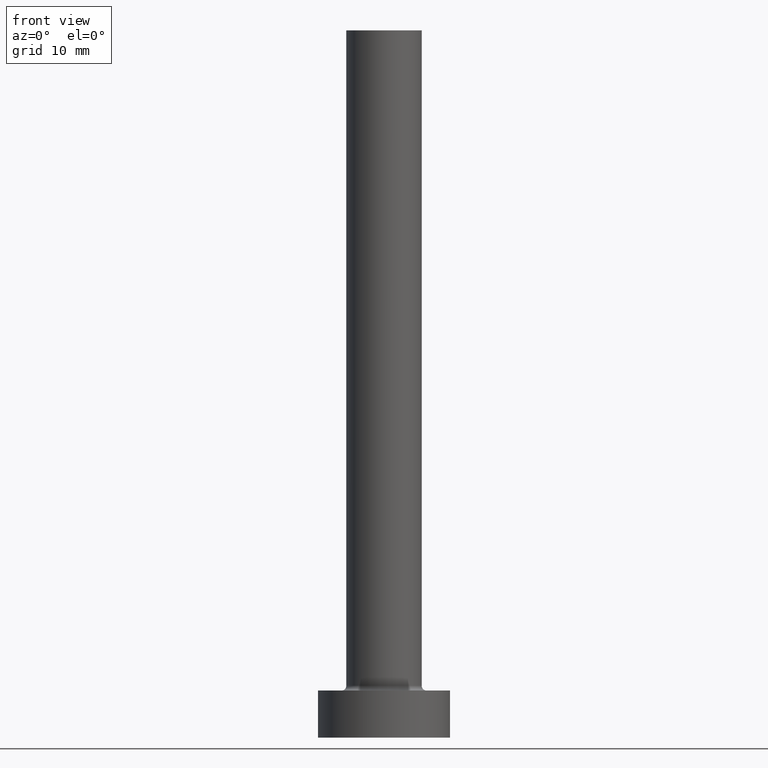
[diagram: clean part render]
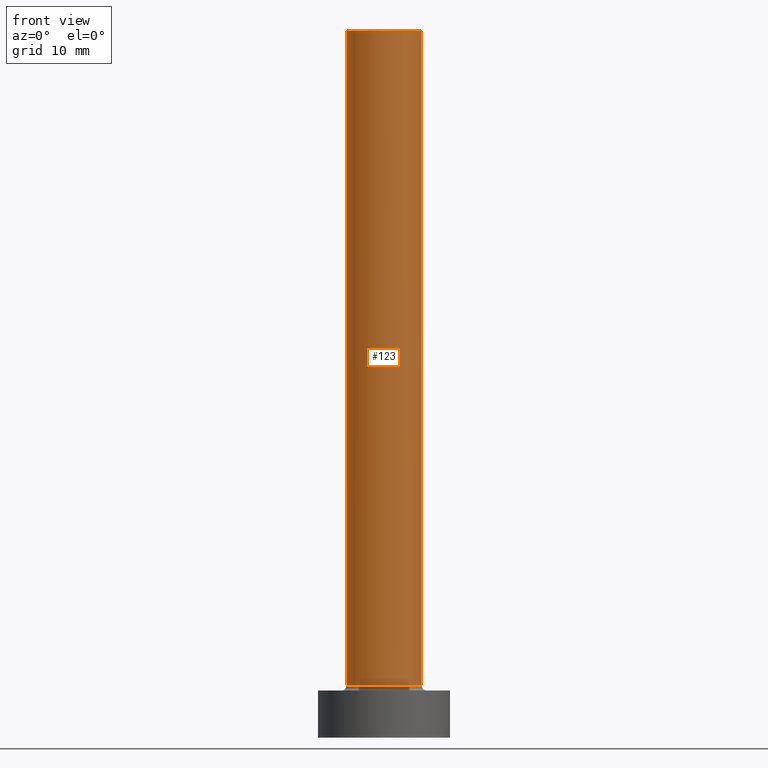
[diagram: same view with one face highlighted and labeled with its STEP entity id]
A machine part, front view. The second image highlights one B-rep face of the part: STEP entity #123.
In plain terms, the highlighted cylindrical surface (partial cylindrical patch) has radius 4 mm, axis along (-0, -0, -1).
Its self-contained STEP definition (entity closure, byte-faithful):
#9 = VERTEX_POINT ( 'NONE', #138 ) ;
#12 = CYLINDRICAL_SURFACE ( 'NONE', #435, 4.000000000000000000 ) ;
#13 = VECTOR ( 'NONE', #50, 1000.000000000000000 ) ;
#36 = EDGE_CURVE ( 'NONE', #219, #80, #333, .T. ) ;
#50 = DIRECTION ( 'NONE',  ( -0.000000000000000000, -0.000000000000000000, -1.000000000000000000 ) ) ;
#77 = VECTOR ( 'NONE', #372, 1000.000000000000000 ) ;
#80 = VERTEX_POINT ( 'NONE', #202 ) ;
#82 = DIRECTION ( 'NONE',  ( 1.000000000000000000, 0.000000000000000000, 0.000000000000000000 ) ) ;
#100 = CARTESIAN_POINT ( 'NONE',  ( 0.000000000000000000, 0.000000000000000000, 75.00000000000001421 ) ) ;
#112 = CARTESIAN_POINT ( 'NONE',  ( 0.000000000000000000, 0.000000000000000000, 5.500000000000005329 ) ) ;
#123 = ADVANCED_FACE ( 'NONE', ( #337 ), #12, .T. ) ;
#138 = CARTESIAN_POINT ( 'NONE',  ( 4.000000000000000000, 4.898587196589412829E-16, 5.500000000000005329 ) ) ;
#151 = ORIENTED_EDGE ( 'NONE', *, *, #409, .T. ) ;
#152 = DIRECTION ( 'NONE',  ( 0.000000000000000000, 0.000000000000000000, 1.000000000000000000 ) ) ;
#165 = CARTESIAN_POINT ( 'NONE',  ( 0.000000000000000000, 0.000000000000000000, 75.00000000000001421 ) ) ;
#169 = EDGE_CURVE ( 'NONE', #80, #9, #325, .T. ) ;
#194 = LINE ( 'NONE', #263, #13 ) ;
#202 = CARTESIAN_POINT ( 'NONE',  ( 4.000000000000000000, 4.898587196589412829E-16, 75.00000000000001421 ) ) ;
#219 = VERTEX_POINT ( 'NONE', #397 ) ;
#245 = DIRECTION ( 'NONE',  ( -1.000000000000000000, 0.000000000000000000, 0.000000000000000000 ) ) ;
#259 = VERTEX_POINT ( 'NONE', #284 ) ;
#263 = CARTESIAN_POINT ( 'NONE',  ( -4.000000000000000000, 0.000000000000000000, 75.00000000000001421 ) ) ;
#284 = CARTESIAN_POINT ( 'NONE',  ( -4.000000000000000000, 0.000000000000000000, 5.500000000000005329 ) ) ;
#291 = CARTESIAN_POINT ( 'NONE',  ( 4.000000000000000000, 4.898587196589412829E-16, 75.00000000000001421 ) ) ;
#308 = ORIENTED_EDGE ( 'NONE', *, *, #390, .T. ) ;
#325 = LINE ( 'NONE', #291, #77 ) ;
#327 = ORIENTED_EDGE ( 'NONE', *, *, #36, .F. ) ;
#333 = CIRCLE ( 'NONE', #346, 4.000000000000000000 ) ;
#337 = FACE_OUTER_BOUND ( 'NONE', #436, .T. ) ;
#346 = AXIS2_PLACEMENT_3D ( 'NONE', #100, #394, #82 ) ;
#370 = CIRCLE ( 'NONE', #416, 4.000000000000000000 ) ;
#372 = DIRECTION ( 'NONE',  ( -0.000000000000000000, -0.000000000000000000, -1.000000000000000000 ) ) ;
#376 = DIRECTION ( 'NONE',  ( 1.000000000000000000, 0.000000000000000000, 0.000000000000000000 ) ) ;
#390 = EDGE_CURVE ( 'NONE', #259, #9, #370, .T. ) ;
#394 = DIRECTION ( 'NONE',  ( 0.000000000000000000, 0.000000000000000000, 1.000000000000000000 ) ) ;
#397 = CARTESIAN_POINT ( 'NONE',  ( -4.000000000000000000, 0.000000000000000000, 75.00000000000001421 ) ) ;
#409 = EDGE_CURVE ( 'NONE', #219, #259, #194, .T. ) ;
#416 = AXIS2_PLACEMENT_3D ( 'NONE', #112, #152, #376 ) ;
#435 = AXIS2_PLACEMENT_3D ( 'NONE', #165, #459, #245 ) ;
#436 = EDGE_LOOP ( 'NONE', ( #443, #327, #151, #308 ) ) ;
#443 = ORIENTED_EDGE ( 'NONE', *, *, #169, .F. ) ;
#459 = DIRECTION ( 'NONE',  ( -0.000000000000000000, -0.000000000000000000, -1.000000000000000000 ) ) ;